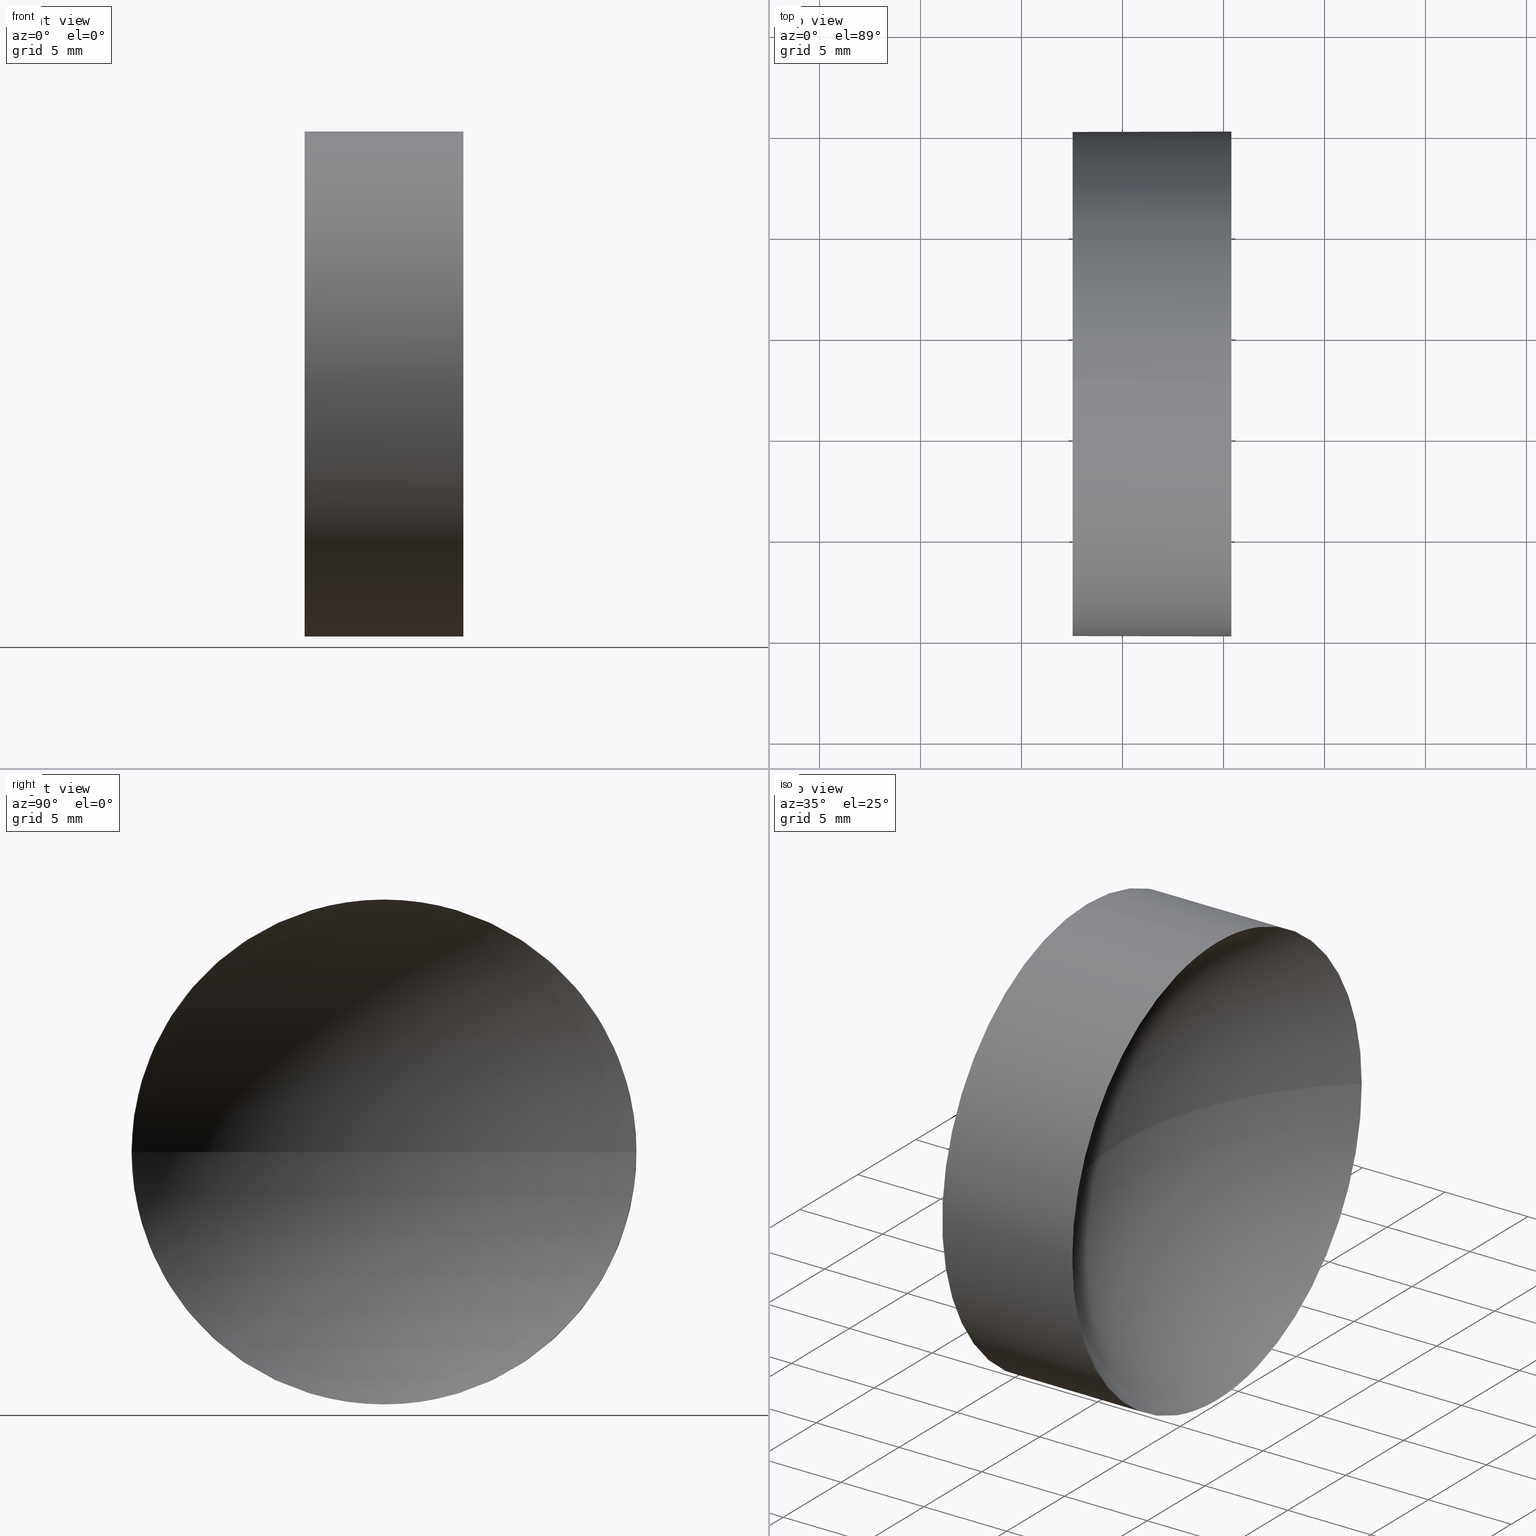
[diagram: canonical four-view strip — front | top / right | iso, engineering-drawing reading convention]
A machine part, canonical four-view strip (front | top / right | iso — engineering-drawing reading convention). The complete STEP part file that produces these views, byte-faithful:
ISO-10303-21;
HEADER;
FILE_DESCRIPTION (( 'STEP AP214' ),
    '1' );
FILE_NAME ('120030.STEP',
    '2019-06-17T02:32:49',
    ( '' ),
    ( '' ),
    'SwSTEP 2.0',
    'SolidWorks 2016',
    '' );
FILE_SCHEMA (( 'AUTOMOTIVE_DESIGN' ));
ENDSEC;

DATA;
#1 = CARTESIAN_POINT ( 'NONE',  ( 57.53233705252611700, 32.61076812922678400, -12.49999999999999600 ) ) ;
#2 = ORIENTED_EDGE ( 'NONE', *, *, #80, .T. ) ;
#3 = DIRECTION ( 'NONE',  ( 0.0000000000000000000, -1.000000000000000000, 0.0000000000000000000 ) ) ;
#4 = ADVANCED_FACE ( 'NONE', ( #41 ), #169, .F. ) ;
#5 = CIRCLE ( 'NONE', #91, 12.49999999999999600 ) ;
#6 =( NAMED_UNIT ( * ) SI_UNIT ( $, .STERADIAN. ) SOLID_ANGLE_UNIT ( ) );
#7 = CARTESIAN_POINT ( 'NONE',  ( 57.53233705252611700, 32.61076812922678400, 0.0000000000000000000 ) ) ;
#8 = AXIS2_PLACEMENT_3D ( 'NONE', #164, #10, #47 ) ;
#9 = SURFACE_STYLE_USAGE ( .BOTH. , #37 ) ;
#10 = DIRECTION ( 'NONE',  ( -1.000000000000000000, -0.0000000000000000000, -0.0000000000000000000 ) ) ;
#11 = VERTEX_POINT ( 'NONE', #18 ) ;
#12 = ORIENTED_EDGE ( 'NONE', *, *, #68, .T. ) ;
#13 = PRODUCT_DEFINITION_SHAPE ( 'NONE', 'NONE',  #149 ) ;
#14 = VECTOR ( 'NONE', #140, 1000.000000000000000 ) ;
#15 = EDGE_LOOP ( 'NONE', ( #82, #99, #127, #69, #2 ) ) ;
#16 = DIRECTION ( 'NONE',  ( 0.0000000000000000000, -1.000000000000000000, -1.224646799147353200E-016 ) ) ;
#17 = CARTESIAN_POINT ( 'NONE',  ( 65.38778473377520600, 32.61076812922678400, 0.0000000000000000000 ) ) ;
#18 = CARTESIAN_POINT ( 'NONE',  ( 65.38778473377520600, 45.11076812922679100, 1.530808498934191500E-015 ) ) ;
#19 = VERTEX_POINT ( 'NONE', #1 ) ;
#20 = CARTESIAN_POINT ( 'NONE',  ( 75.80233705252611300, 32.61076812922678400, 0.0000000000000000000 ) ) ;
#21 = EDGE_CURVE ( 'NONE', #11, #88, #133, .T. ) ;
#22 = DIRECTION ( 'NONE',  ( -1.000000000000000000, 0.0000000000000000000, 0.0000000000000000000 ) ) ;
#23 = CARTESIAN_POINT ( 'NONE',  ( 75.80233705252611300, 32.61076812922678400, 0.0000000000000000000 ) ) ;
#24 = EDGE_LOOP ( 'NONE', ( #36, #95 ) ) ;
#25 = CARTESIAN_POINT ( 'NONE',  ( 56.10091507999716500, 32.61076812922678400, 12.49999999999999600 ) ) ;
#26 =( NAMED_UNIT ( * ) SI_UNIT ( $, .STERADIAN. ) SOLID_ANGLE_UNIT ( ) );
#27 = DIRECTION ( 'NONE',  ( -1.000000000000000000, -0.0000000000000000000, -0.0000000000000000000 ) ) ;
#28 = COLOUR_RGB ( '',1.000000000000000000, 1.000000000000000000, 1.000000000000000000 ) ;
#29 = CYLINDRICAL_SURFACE ( 'NONE', #44, 12.49999999999999600 ) ;
#30 = UNCERTAINTY_MEASURE_WITH_UNIT (LENGTH_MEASURE( 1.000000000000000100E-005 ), #112, 'distance_accuracy_value', 'NONE');
#31 = DIRECTION ( 'NONE',  ( -1.000000000000000000, -0.0000000000000000000, -0.0000000000000000000 ) ) ;
#32 = AXIS2_PLACEMENT_3D ( 'NONE', #23, #162, #3 ) ;
#33 = CARTESIAN_POINT ( 'NONE',  ( 65.38778473377520600, 32.61076812922678400, 0.0000000000000000000 ) ) ;
#34 = LINE ( 'NONE', #25, #14 ) ;
#35 = AXIS2_PLACEMENT_3D ( 'NONE', #165, #97, #179 ) ;
#36 = ORIENTED_EDGE ( 'NONE', *, *, #142, .T. ) ;
#37 = SURFACE_SIDE_STYLE ('',( #114 ) ) ;
#38 = DIRECTION ( 'NONE',  ( 0.0000000000000000000, 0.0000000000000000000, 1.000000000000000000 ) ) ;
#39 = CIRCLE ( 'NONE', #103, 12.49999999999999600 ) ;
#40 = AXIS2_PLACEMENT_3D ( 'NONE', #86, #186, #16 ) ;
#41 = FACE_OUTER_BOUND ( 'NONE', #124, .T. ) ;
#42 = EDGE_CURVE ( 'NONE', #19, #90, #5, .T. ) ;
#43 = ORIENTED_EDGE ( 'NONE', *, *, #184, .T. ) ;
#44 = AXIS2_PLACEMENT_3D ( 'NONE', #70, #172, #104 ) ;
#45 = ADVANCED_FACE ( 'NONE', ( #147 ), #29, .T. ) ;
#46 = FILL_AREA_STYLE_COLOUR ( '', #141 ) ;
#47 = DIRECTION ( 'NONE',  ( 0.0000000000000000000, 0.0000000000000000000, 1.000000000000000000 ) ) ;
#48 =( NAMED_UNIT ( * ) PLANE_ANGLE_UNIT ( ) SI_UNIT ( $, .RADIAN. ) );
#49 = DIRECTION ( 'NONE',  ( 0.0000000000000000000, 0.0000000000000000000, 1.000000000000000000 ) ) ;
#50 = SPHERICAL_SURFACE ( 'NONE', #32, 16.27000000000000000 ) ;
#51 = VERTEX_POINT ( 'NONE', #132 ) ;
#52 = EDGE_CURVE ( 'NONE', #11, #51, #39, .T. ) ;
#53 = ORIENTED_EDGE ( 'NONE', *, *, #68, .F. ) ;
#54 = ORIENTED_EDGE ( 'NONE', *, *, #52, .F. ) ;
#55 = AXIS2_PLACEMENT_3D ( 'NONE', #33, #123, #160 ) ;
#56 = ORIENTED_EDGE ( 'NONE', *, *, #21, .T. ) ;
#57 = CARTESIAN_POINT ( 'NONE',  ( 75.80233705252611300, 32.61076812922678400, 0.0000000000000000000 ) ) ;
#58 =( GEOMETRIC_REPRESENTATION_CONTEXT ( 3 ) GLOBAL_UNCERTAINTY_ASSIGNED_CONTEXT ( ( #30 ) ) GLOBAL_UNIT_ASSIGNED_CONTEXT ( ( #112, #136, #6 ) ) REPRESENTATION_CONTEXT ( 'NONE', 'WORKASPACE' ) );
#59 = APPLICATION_PROTOCOL_DEFINITION ( 'draft international standard', 'automotive_design', 1998, #115 ) ;
#60 = ORIENTED_EDGE ( 'NONE', *, *, #184, .F. ) ;
#61 = ADVANCED_BREP_SHAPE_REPRESENTATION ( '120030', ( #180, #98 ), #58 ) ;
#62 = DIRECTION ( 'NONE',  ( 0.0000000000000000000, 0.0000000000000000000, 1.000000000000000000 ) ) ;
#63 = DIRECTION ( 'NONE',  ( 0.0000000000000000000, 0.0000000000000000000, 1.000000000000000000 ) ) ;
#64 = EDGE_CURVE ( 'NONE', #51, #19, #156, .T. ) ;
#65 = AXIS2_PLACEMENT_3D ( 'NONE', #94, #78, #38 ) ;
#66 = PRODUCT_DEFINITION_CONTEXT ( 'detailed design', #182, 'design' ) ;
#67 = PRESENTATION_STYLE_ASSIGNMENT (( #9 ) ) ;
#68 = EDGE_CURVE ( 'NONE', #84, #88, #176, .T. ) ;
#69 = ORIENTED_EDGE ( 'NONE', *, *, #173, .F. ) ;
#70 = CARTESIAN_POINT ( 'NONE',  ( 56.10091507999716500, 32.61076812922678400, 0.0000000000000000000 ) ) ;
#71 = CARTESIAN_POINT ( 'NONE',  ( 57.53233705252611700, 32.61076812922678400, 0.0000000000000000000 ) ) ;
#72 =( GEOMETRIC_REPRESENTATION_CONTEXT ( 3 ) GLOBAL_UNCERTAINTY_ASSIGNED_CONTEXT ( ( #168 ) ) GLOBAL_UNIT_ASSIGNED_CONTEXT ( ( #177, #113, #26 ) ) REPRESENTATION_CONTEXT ( 'NONE', 'WORKASPACE' ) );
#73 = EDGE_LOOP ( 'NONE', ( #54, #56, #53, #60 ) ) ;
#74 = SURFACE_STYLE_USAGE ( .BOTH. , #163 ) ;
#75 = ORIENTED_EDGE ( 'NONE', *, *, #64, .F. ) ;
#76 = ADVANCED_FACE ( 'NONE', ( #81 ), #50, .F. ) ;
#77 = PLANE ( 'NONE',  #35 ) ;
#78 = DIRECTION ( 'NONE',  ( -1.000000000000000000, -0.0000000000000000000, -0.0000000000000000000 ) ) ;
#79 = UNCERTAINTY_MEASURE_WITH_UNIT (LENGTH_MEASURE( 1.000000000000000100E-005 ), #175, 'distance_accuracy_value', 'NONE');
#80 = EDGE_CURVE ( 'NONE', #181, #11, #101, .T. ) ;
#81 = FACE_OUTER_BOUND ( 'NONE', #73, .T. ) ;
#82 = ORIENTED_EDGE ( 'NONE', *, *, #52, .T. ) ;
#83 = APPLICATION_PROTOCOL_DEFINITION ( 'draft international standard', 'automotive_design', 1998, #182 ) ;
#84 = VERTEX_POINT ( 'NONE', #134 ) ;
#85 = AXIS2_PLACEMENT_3D ( 'NONE', #57, #159, #146 ) ;
#86 = CARTESIAN_POINT ( 'NONE',  ( 75.80233705252611300, 32.61076812922678400, 0.0000000000000000000 ) ) ;
#87 = EDGE_CURVE ( 'NONE', #84, #181, #185, .T. ) ;
#88 = VERTEX_POINT ( 'NONE', #107 ) ;
#89 = PRESENTATION_LAYER_ASSIGNMENT (  '', '', ( #145 ) ) ;
#90 = VERTEX_POINT ( 'NONE', #108 ) ;
#91 = AXIS2_PLACEMENT_3D ( 'NONE', #71, #102, #158 ) ;
#92 = PRODUCT_RELATED_PRODUCT_CATEGORY ( 'part', '', ( #135 ) ) ;
#93 =( NAMED_UNIT ( * ) SI_UNIT ( $, .STERADIAN. ) SOLID_ANGLE_UNIT ( ) );
#94 = CARTESIAN_POINT ( 'NONE',  ( 65.38778473377520600, 32.61076812922678400, 0.0000000000000000000 ) ) ;
#95 = ORIENTED_EDGE ( 'NONE', *, *, #42, .T. ) ;
#96 = CARTESIAN_POINT ( 'NONE',  ( 0.0000000000000000000, 0.0000000000000000000, 0.0000000000000000000 ) ) ;
#97 = DIRECTION ( 'NONE',  ( 1.000000000000000000, 0.0000000000000000000, 0.0000000000000000000 ) ) ;
#98 = AXIS2_PLACEMENT_3D ( 'NONE', #96, #49, #117 ) ;
#99 = ORIENTED_EDGE ( 'NONE', *, *, #64, .T. ) ;
#100 = ORIENTED_EDGE ( 'NONE', *, *, #87, .F. ) ;
#101 = CIRCLE ( 'NONE', #55, 12.49999999999999600 ) ;
#102 = DIRECTION ( 'NONE',  ( -1.000000000000000000, -0.0000000000000000000, -0.0000000000000000000 ) ) ;
#103 = AXIS2_PLACEMENT_3D ( 'NONE', #17, #130, #148 ) ;
#104 = DIRECTION ( 'NONE',  ( 0.0000000000000000000, 0.0000000000000000000, 1.000000000000000000 ) ) ;
#105 = AXIS2_PLACEMENT_3D ( 'NONE', #7, #27, #62 ) ;
#106 = ORIENTED_EDGE ( 'NONE', *, *, #42, .F. ) ;
#107 = CARTESIAN_POINT ( 'NONE',  ( 59.53233705252611700, 32.61076812922678400, 0.0000000000000000000 ) ) ;
#108 = CARTESIAN_POINT ( 'NONE',  ( 57.53233705252611700, 32.61076812922678400, 12.49999999999999600 ) ) ;
#109 =( GEOMETRIC_REPRESENTATION_CONTEXT ( 3 ) GLOBAL_UNCERTAINTY_ASSIGNED_CONTEXT ( ( #79 ) ) GLOBAL_UNIT_ASSIGNED_CONTEXT ( ( #175, #48, #93 ) ) REPRESENTATION_CONTEXT ( 'NONE', 'WORKASPACE' ) );
#110 = PRESENTATION_STYLE_ASSIGNMENT (( #74 ) ) ;
#111 = CARTESIAN_POINT ( 'NONE',  ( 65.38778473377520600, 32.61076812922678400, 12.49999999999999600 ) ) ;
#112 =( LENGTH_UNIT ( ) NAMED_UNIT ( * ) SI_UNIT ( .MILLI., .METRE. ) );
#113 =( NAMED_UNIT ( * ) PLANE_ANGLE_UNIT ( ) SI_UNIT ( $, .RADIAN. ) );
#114 = SURFACE_STYLE_FILL_AREA ( #155 ) ;
#115 = APPLICATION_CONTEXT ( 'automotive_design' ) ;
#116 = FACE_OUTER_BOUND ( 'NONE', #24, .T. ) ;
#117 = DIRECTION ( 'NONE',  ( 1.000000000000000000, 0.0000000000000000000, 0.0000000000000000000 ) ) ;
#118 = PRODUCT_CONTEXT ( 'NONE', #115, 'mechanical' ) ;
#119 = STYLED_ITEM ( 'NONE', ( #67 ), #180 ) ;
#120 = ORIENTED_EDGE ( 'NONE', *, *, #21, .F. ) ;
#121 = CARTESIAN_POINT ( 'NONE',  ( 56.10091507999716500, 32.61076812922678400, -12.49999999999999600 ) ) ;
#122 = ORIENTED_EDGE ( 'NONE', *, *, #80, .F. ) ;
#123 = DIRECTION ( 'NONE',  ( -1.000000000000000000, -0.0000000000000000000, -0.0000000000000000000 ) ) ;
#124 = EDGE_LOOP ( 'NONE', ( #120, #122, #100, #12 ) ) ;
#125 = ADVANCED_FACE ( 'NONE', ( #144 ), #171, .T. ) ;
#126 = ADVANCED_FACE ( 'NONE', ( #116 ), #77, .F. ) ;
#127 = ORIENTED_EDGE ( 'NONE', *, *, #142, .F. ) ;
#128 = AXIS2_PLACEMENT_3D ( 'NONE', #178, #154, #63 ) ;
#129 = CIRCLE ( 'NONE', #8, 12.49999999999999600 ) ;
#130 = DIRECTION ( 'NONE',  ( -1.000000000000000000, -0.0000000000000000000, -0.0000000000000000000 ) ) ;
#131 = ORIENTED_EDGE ( 'NONE', *, *, #87, .T. ) ;
#132 = CARTESIAN_POINT ( 'NONE',  ( 65.38778473377520600, 32.61076812922678400, -12.49999999999999600 ) ) ;
#133 = CIRCLE ( 'NONE', #40, 16.27000000000000000 ) ;
#134 = CARTESIAN_POINT ( 'NONE',  ( 65.38778473377520600, 20.11076812922678800, 0.0000000000000000000 ) ) ;
#135 = PRODUCT ( '120030', '120030', '', ( #118 ) ) ;
#136 =( NAMED_UNIT ( * ) PLANE_ANGLE_UNIT ( ) SI_UNIT ( $, .RADIAN. ) );
#137 = EDGE_LOOP ( 'NONE', ( #75, #43, #131, #161, #106 ) ) ;
#138 = FILL_AREA_STYLE ('',( #46 ) ) ;
#139 = MECHANICAL_DESIGN_GEOMETRIC_PRESENTATION_REPRESENTATION (  '', ( #145 ), #109 ) ;
#140 = DIRECTION ( 'NONE',  ( -1.000000000000000000, -0.0000000000000000000, -0.0000000000000000000 ) ) ;
#141 = COLOUR_RGB ( '',1.000000000000000000, 1.000000000000000000, 1.000000000000000000 ) ;
#142 = EDGE_CURVE ( 'NONE', #90, #19, #150, .T. ) ;
#143 = CLOSED_SHELL ( 'NONE', ( #45, #76, #4, #125, #126 ) ) ;
#144 = FACE_OUTER_BOUND ( 'NONE', #137, .T. ) ;
#145 = STYLED_ITEM ( 'NONE', ( #110 ), #61 ) ;
#146 = DIRECTION ( 'NONE',  ( 0.0000000000000000000, -1.000000000000000000, 0.0000000000000000000 ) ) ;
#147 = FACE_OUTER_BOUND ( 'NONE', #15, .T. ) ;
#148 = DIRECTION ( 'NONE',  ( 0.0000000000000000000, 0.0000000000000000000, 1.000000000000000000 ) ) ;
#149 = PRODUCT_DEFINITION ( 'δ֪', '', #157, #66 ) ;
#150 = CIRCLE ( 'NONE', #105, 12.49999999999999600 ) ;
#151 = AXIS2_PLACEMENT_3D ( 'NONE', #20, #174, #22 ) ;
#152 = SHAPE_DEFINITION_REPRESENTATION ( #13, #61 ) ;
#153 = VECTOR ( 'NONE', #31, 1000.000000000000000 ) ;
#154 = DIRECTION ( 'NONE',  ( -1.000000000000000000, -0.0000000000000000000, -0.0000000000000000000 ) ) ;
#155 = FILL_AREA_STYLE ('',( #166 ) ) ;
#156 = LINE ( 'NONE', #121, #153 ) ;
#157 = PRODUCT_DEFINITION_FORMATION_WITH_SPECIFIED_SOURCE ( '�κ�', '', #135, .NOT_KNOWN. ) ;
#158 = DIRECTION ( 'NONE',  ( 0.0000000000000000000, 0.0000000000000000000, 1.000000000000000000 ) ) ;
#159 = DIRECTION ( 'NONE',  ( 0.0000000000000000000, 0.0000000000000000000, 1.000000000000000000 ) ) ;
#160 = DIRECTION ( 'NONE',  ( 0.0000000000000000000, 0.0000000000000000000, 1.000000000000000000 ) ) ;
#161 = ORIENTED_EDGE ( 'NONE', *, *, #173, .T. ) ;
#162 = DIRECTION ( 'NONE',  ( 0.0000000000000000000, 0.0000000000000000000, 1.000000000000000000 ) ) ;
#163 = SURFACE_SIDE_STYLE ('',( #167 ) ) ;
#164 = CARTESIAN_POINT ( 'NONE',  ( 65.38778473377520600, 32.61076812922678400, 0.0000000000000000000 ) ) ;
#165 = CARTESIAN_POINT ( 'NONE',  ( 57.53233705252611700, 32.61076812922678400, 0.0000000000000000000 ) ) ;
#166 = FILL_AREA_STYLE_COLOUR ( '', #28 ) ;
#167 = SURFACE_STYLE_FILL_AREA ( #138 ) ;
#168 = UNCERTAINTY_MEASURE_WITH_UNIT (LENGTH_MEASURE( 1.000000000000000100E-005 ), #177, 'distance_accuracy_value', 'NONE');
#169 = SPHERICAL_SURFACE ( 'NONE', #85, 16.27000000000000000 ) ;
#170 = PRESENTATION_LAYER_ASSIGNMENT (  '', '', ( #119 ) ) ;
#171 = CYLINDRICAL_SURFACE ( 'NONE', #128, 12.49999999999999600 ) ;
#172 = DIRECTION ( 'NONE',  ( -1.000000000000000000, -0.0000000000000000000, -0.0000000000000000000 ) ) ;
#173 = EDGE_CURVE ( 'NONE', #181, #90, #34, .T. ) ;
#174 = DIRECTION ( 'NONE',  ( 0.0000000000000000000, 0.0000000000000000000, -1.000000000000000000 ) ) ;
#175 =( LENGTH_UNIT ( ) NAMED_UNIT ( * ) SI_UNIT ( .MILLI., .METRE. ) );
#176 = CIRCLE ( 'NONE', #151, 16.27000000000000000 ) ;
#177 =( LENGTH_UNIT ( ) NAMED_UNIT ( * ) SI_UNIT ( .MILLI., .METRE. ) );
#178 = CARTESIAN_POINT ( 'NONE',  ( 56.10091507999716500, 32.61076812922678400, 0.0000000000000000000 ) ) ;
#179 = DIRECTION ( 'NONE',  ( 0.0000000000000000000, 0.0000000000000000000, -1.000000000000000000 ) ) ;
#180 = MANIFOLD_SOLID_BREP ( '��ת1', #143 ) ;
#181 = VERTEX_POINT ( 'NONE', #111 ) ;
#182 = APPLICATION_CONTEXT ( 'automotive_design' ) ;
#183 = MECHANICAL_DESIGN_GEOMETRIC_PRESENTATION_REPRESENTATION (  '', ( #119 ), #72 ) ;
#184 = EDGE_CURVE ( 'NONE', #51, #84, #129, .T. ) ;
#185 = CIRCLE ( 'NONE', #65, 12.49999999999999600 ) ;
#186 = DIRECTION ( 'NONE',  ( 0.0000000000000000000, -1.224646799147353200E-016, 1.000000000000000000 ) ) ;
ENDSEC;
END-ISO-10303-21;
